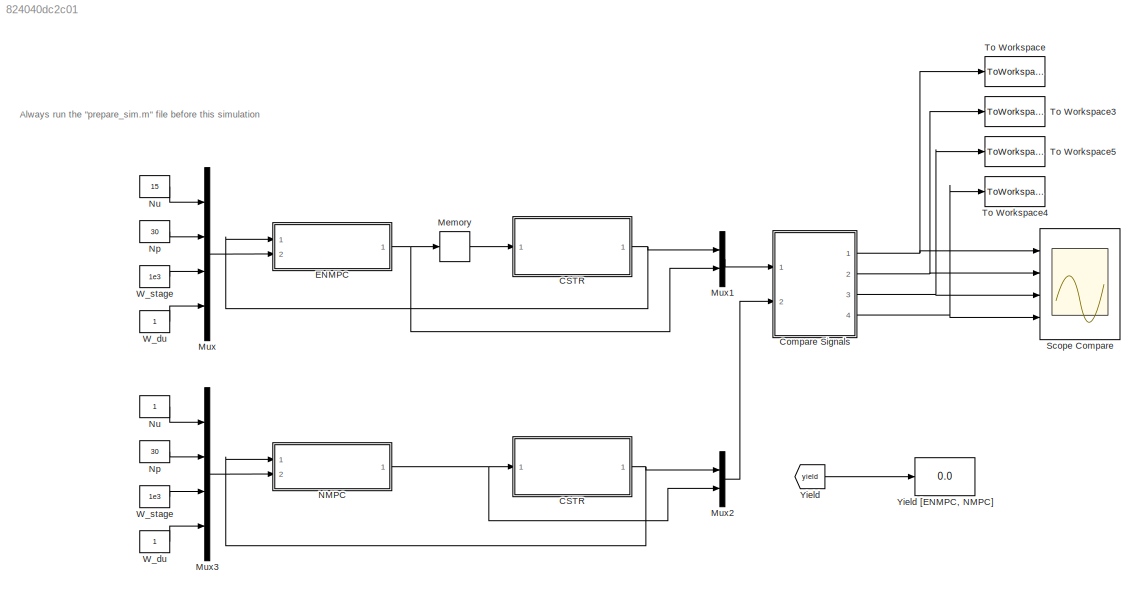
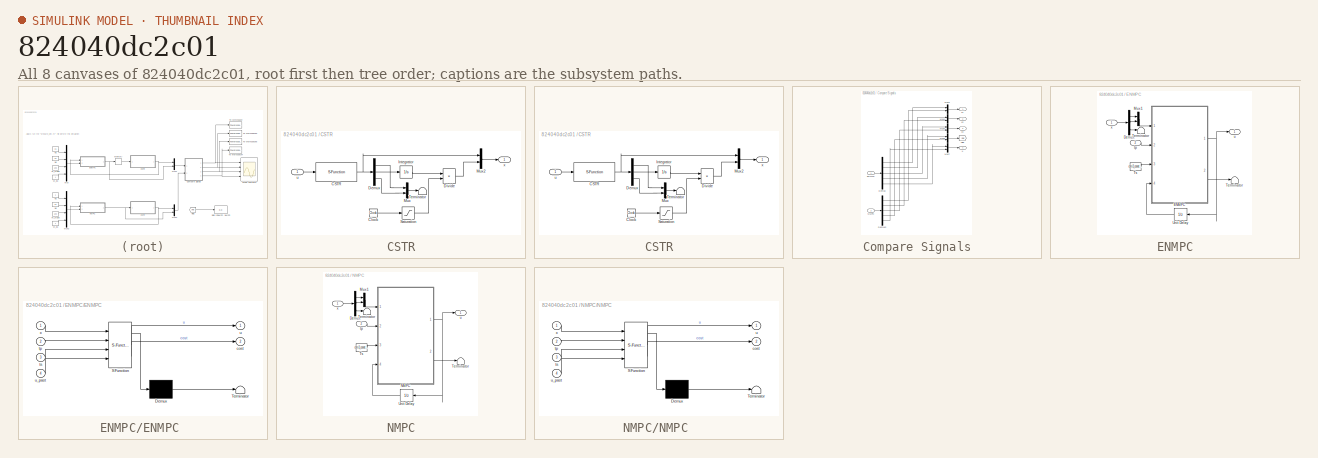
[diagram: thumbnail index - all 8 canvases of the model, root first then tree order]
MODEL slx_824040dc2c01
KIND model
CONFIG AbsTol = auto
CONFIG EnableMultiTasking = off
CONFIG FixedStep = auto
CONFIG MaxStep = auto
CONFIG MinStep = auto
CONFIG RelTol = 1e-3
CONFIG SampleTimeConstraint = Unconstrained
CONFIG Solver = ode15s
CONFIG SolverName = ode15s
CONFIG StartTime = 0.0
CONFIG StopTime = 10
BLOCK [SubSystem]  CSTR 
  Ports = [1, 1]
  RequestExecContextInheritance = off
BLOCK [S-Function]  CSTR /CSTR
  EnableBusSupport = off
  FunctionName = cstr2_sfun
  Ports = [1, 1]
  SFcnIsStateOwnerBlock = off
  SFunctionDeploymentMode = off
BLOCK [Clock]  CSTR /Clock
BLOCK [Demux]  CSTR /Demux
  DisplayOption = bar
  Outputs = 3
  Ports = [1, 3]
BLOCK [Product]  CSTR /Divide
  InputSameDT = off
  Inputs = */
  OutDataTypeStr = Inherit: Inherit via internal rule
  Ports = [2, 1]
  RndMeth = Floor
  SaturateOnIntegerOverflow = off
BLOCK [Integrator]  CSTR /Integrator
  Ports = [1, 1]
BLOCK [Mux]  CSTR /Mux
  DisplayOption = bar
  Inputs = 2
  Ports = [2, 1]
BLOCK [Mux]  CSTR /Mux2
  DisplayOption = bar
  Inputs = 2
  Ports = [2, 1]
BLOCK [Saturate]  CSTR /Saturation
  InputPortMap = u0
  LowerLimit = cstr2_const.ts
  Ports = [1, 1]
  UpperLimit = inf
BLOCK [Terminator]  CSTR /Terminator
BLOCK [Inport]  CSTR /u
  IconDisplay = Port number
BLOCK [Outport]  CSTR /x
  IconDisplay = Port number
BLOCK [Constant]  Np 
  Value = 30
BLOCK [Constant]  Nu 
BLOCK [Constant]  W_du 
BLOCK [Constant]  W_stage 
  Value = 1e3
BLOCK [Display]  Yield [ENMPC, NMPC]
  Decimation = 1
  Ports = [1]
BLOCK [SubSystem] CSTR
  Ports = [1, 1]
  RequestExecContextInheritance = off
BLOCK [S-Function] CSTR/CSTR
  EnableBusSupport = off
  FunctionName = cstr2_sfun
  Ports = [1, 1]
  SFcnIsStateOwnerBlock = off
  SFunctionDeploymentMode = off
BLOCK [Clock] CSTR/Clock
BLOCK [Demux] CSTR/Demux
  DisplayOption = bar
  Outputs = 3
  Ports = [1, 3]
BLOCK [Product] CSTR/Divide
  InputSameDT = off
  Inputs = */
  OutDataTypeStr = Inherit: Inherit via internal rule
  Ports = [2, 1]
  RndMeth = Floor
  SaturateOnIntegerOverflow = off
BLOCK [Integrator] CSTR/Integrator
  Ports = [1, 1]
BLOCK [Mux] CSTR/Mux
  DisplayOption = bar
  Inputs = 2
  Ports = [2, 1]
BLOCK [Mux] CSTR/Mux2
  DisplayOption = bar
  Inputs = 2
  Ports = [2, 1]
BLOCK [Saturate] CSTR/Saturation
  InputPortMap = u0
  LowerLimit = cstr2_const.ts
  Ports = [1, 1]
  UpperLimit = inf
BLOCK [Terminator] CSTR/Terminator
BLOCK [Inport] CSTR/u
  IconDisplay = Port number
BLOCK [Outport] CSTR/x
  IconDisplay = Port number
BLOCK [SubSystem] Compare Signals
  Ports = [2, 4]
  RequestExecContextInheritance = off
BLOCK [Demux] Compare Signals/Demux
  DisplayOption = bar
  Outputs = 5
  Ports = [1, 5]
BLOCK [Demux] Compare Signals/Demux2
  DisplayOption = bar
  Outputs = 5
  Ports = [1, 5]
BLOCK [Inport] Compare Signals/ENMPC
  IconDisplay = Port number
BLOCK [Mux] Compare Signals/Mux2
  DisplayOption = bar
  Inputs = 2
  Ports = [2, 1]
BLOCK [Mux] Compare Signals/Mux4
  DisplayOption = bar
  Inputs = 2
  Ports = [2, 1]
BLOCK [Mux] Compare Signals/Mux5
  DisplayOption = bar
  Inputs = 2
  Ports = [2, 1]
BLOCK [Mux] Compare Signals/Mux6
  DisplayOption = bar
  Inputs = 2
  Ports = [2, 1]
BLOCK [Mux] Compare Signals/Mux7
  DisplayOption = bar
  Inputs = 2
  Ports = [2, 1]
BLOCK [Inport] Compare Signals/NMPC
  IconDisplay = Port number
  Port = 2
BLOCK [Outport] Compare Signals/u
  IconDisplay = Port number
  Port = 4
BLOCK [Outport] Compare Signals/x1
  IconDisplay = Port number
BLOCK [Outport] Compare Signals/x2
  IconDisplay = Port number
  Port = 2
BLOCK [Outport] Compare Signals/x3
  IconDisplay = Port number
  Port = 3
BLOCK [Goto] Compare Signals/yield
  GotoTag = yield
  TagVisibility = global
BLOCK [SubSystem] ENMPC
  Ports = [2, 1]
  RequestExecContextInheritance = off
BLOCK [Demux] ENMPC/Demux
  DisplayOption = bar
  Outputs = 3
  Ports = [1, 3]
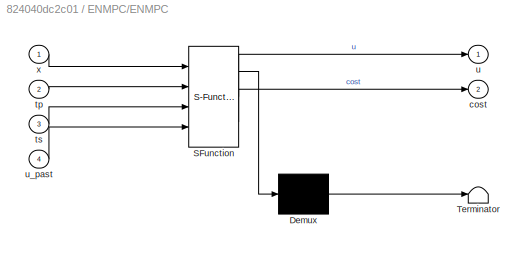
BLOCK [SubSystem] ENMPC/ENMPC 
  ErrorFcn = Stateflow.Translate.translate
  PermitHierarchicalResolution = ExplicitOnly
  Ports = [4, 2]
  RequestExecContextInheritance = off
  SFBlockType = MATLAB Function
  SystemSampleTime = cstr2_const.ts
  TreatAsAtomicUnit = on
BLOCK [Demux] ENMPC/ENMPC / Demux 
  Outputs = 1
  Ports = [1, 1]
BLOCK [S-Function] ENMPC/ENMPC / SFunction 
  EnableBusSupport = off
  FunctionName = sf_sfun
  PortCounts = [4 3]
  Ports = [4, 3]
  SFcnIsStateOwnerBlock = off
  SFunctionDeploymentMode = off
  Tag = Stateflow S-Function cstr2_control_loops1 2
BLOCK [Terminator] ENMPC/ENMPC / Terminator 
BLOCK [Outport] ENMPC/ENMPC /cost
  IconDisplay = Port number
  Port = 2
BLOCK [Inport] ENMPC/ENMPC /tp
  IconDisplay = Port number
  Port = 2
BLOCK [Inport] ENMPC/ENMPC /ts
  IconDisplay = Port number
  Port = 3
BLOCK [Outport] ENMPC/ENMPC /u
  IconDisplay = Port number
BLOCK [Inport] ENMPC/ENMPC /u_past
  IconDisplay = Port number
  Port = 4
BLOCK [Inport] ENMPC/ENMPC /x
  IconDisplay = Port number
BLOCK [Mux] ENMPC/Mux1
  DisplayOption = bar
  Inputs = 2
  Ports = [2, 1]
BLOCK [Terminator] ENMPC/Terminator
BLOCK [Terminator] ENMPC/Terminator 
BLOCK [Constant] ENMPC/Ts
  Value = cstr2_const.ts
BLOCK [UnitDelay] ENMPC/Unit Delay
  HasFrameUpgradeWarning = on
  InitialCondition = cstr2_const.u_0
  SampleTime = cstr2_const.ts
BLOCK [Inport] ENMPC/tp
  IconDisplay = Port number
  Port = 2
BLOCK [Outport] ENMPC/u
  IconDisplay = Port number
BLOCK [Inport] ENMPC/x
  IconDisplay = Port number
BLOCK [Memory] Memory
  InitialCondition = cstr2_const.u_0
BLOCK [Mux] Mux
  DisplayOption = bar
  Ports = [4, 1]
BLOCK [Mux] Mux1
  DisplayOption = bar
  Inputs = 2
  Ports = [2, 1]
BLOCK [Mux] Mux2
  DisplayOption = bar
  Inputs = 2
  Ports = [2, 1]
BLOCK [Mux] Mux3
  DisplayOption = bar
  Ports = [4, 1]
BLOCK [SubSystem] NMPC
  Ports = [2, 1]
  RequestExecContextInheritance = off
BLOCK [Demux] NMPC/Demux
  DisplayOption = bar
  Outputs = 3
  Ports = [1, 3]
BLOCK [Mux] NMPC/Mux1
  DisplayOption = bar
  Inputs = 2
  Ports = [2, 1]
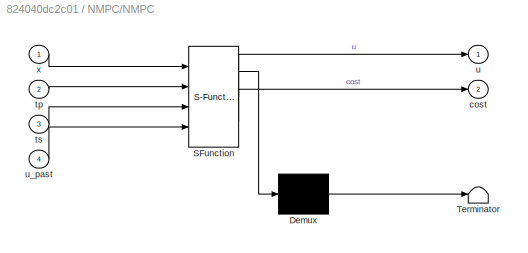
BLOCK [SubSystem] NMPC/NMPC 
  ErrorFcn = Stateflow.Translate.translate
  PermitHierarchicalResolution = ExplicitOnly
  Ports = [4, 2]
  RequestExecContextInheritance = off
  SFBlockType = MATLAB Function
  SystemSampleTime = cstr2_const.ts
  TreatAsAtomicUnit = on
BLOCK [Demux] NMPC/NMPC / Demux 
  Outputs = 1
  Ports = [1, 1]
BLOCK [S-Function] NMPC/NMPC / SFunction 
  EnableBusSupport = off
  FunctionName = sf_sfun
  PortCounts = [4 3]
  Ports = [4, 3]
  SFcnIsStateOwnerBlock = off
  SFunctionDeploymentMode = off
  Tag = Stateflow S-Function cstr2_control_loops1 1
BLOCK [Terminator] NMPC/NMPC / Terminator 
BLOCK [Outport] NMPC/NMPC /cost
  IconDisplay = Port number
  Port = 2
BLOCK [Inport] NMPC/NMPC /tp
  IconDisplay = Port number
  Port = 2
BLOCK [Inport] NMPC/NMPC /ts
  IconDisplay = Port number
  Port = 3
BLOCK [Outport] NMPC/NMPC /u
  IconDisplay = Port number
BLOCK [Inport] NMPC/NMPC /u_past
  IconDisplay = Port number
  Port = 4
BLOCK [Inport] NMPC/NMPC /x
  IconDisplay = Port number
BLOCK [Terminator] NMPC/Terminator
BLOCK [Terminator] NMPC/Terminator 
BLOCK [Constant] NMPC/Ts
  Value = cstr2_const.ts
BLOCK [UnitDelay] NMPC/Unit Delay
  HasFrameUpgradeWarning = on
  InitialCondition = cstr2_const.u_0
  SampleTime = cstr2_const.ts
BLOCK [Inport] NMPC/tp
  IconDisplay = Port number
  Port = 2
BLOCK [Outport] NMPC/u
  IconDisplay = Port number
BLOCK [Inport] NMPC/x
  IconDisplay = Port number
BLOCK [Constant] Np
  Value = 30
BLOCK [Constant] Nu
  Value = 15
BLOCK [Scope] Scope Compare
  Floating = off
  NumInputPorts = 4
  Ports = [4]
  ScopeSpecificationString = Simulink.scopes.TimeScopeBlockCfg('CurrentConfiguration', extmgr.ConfigurationSet(extmgr.Configuration('Core','General UI',true),extmgr.Configuration('Core','Source UI',true),extmgr.Configuration('Sources','WiredSimulink',true,'DataLogging',true,'DataLoggingSaveFormat','StructureWithTime','DataLoggingVariableName','cstr2_data'),extmgr.Configuration('Visuals','Time Domain',true,'TimeAxisLabels','Al...<+4963ch>
BLOCK [ToWorkspace] To Workspace
  FixptAsFi = on
  MaxDataPoints = inf
  Ports = [1]
  SampleTime = -1
  SaveFormat = Structure With Time
  VariableName = x1
BLOCK [ToWorkspace] To Workspace3
  FixptAsFi = on
  MaxDataPoints = inf
  Ports = [1]
  SampleTime = -1
  SaveFormat = Structure With Time
  VariableName = x2
BLOCK [ToWorkspace] To Workspace4
  FixptAsFi = on
  MaxDataPoints = inf
  Ports = [1]
  SampleTime = -1
  SaveFormat = Structure With Time
  VariableName = u
BLOCK [ToWorkspace] To Workspace5
  FixptAsFi = on
  MaxDataPoints = inf
  Ports = [1]
  SampleTime = -1
  SaveFormat = Structure With Time
  VariableName = x3
BLOCK [Constant] W_du
BLOCK [Constant] W_stage
  Value = 1e3
BLOCK [From] Yield
  GotoTag = yield
  TagVisibility = global
ANNOTATION (root): Always run the "prepare_sim.m" file before this simulation
NET  CSTR /CSTR:1 ->  CSTR /Demux:1,  CSTR /Mux2:1
LINE  CSTR /Clock:1 ->  CSTR /Saturation:1
LINE  CSTR /Demux:1 ->  CSTR /Mux:1
LINE  CSTR /Demux:2 ->  CSTR /Integrator:1
LINE  CSTR /Demux:3 ->  CSTR /Mux:2
LINE  CSTR /Divide:1 ->  CSTR /Mux2:2
LINE  CSTR /Integrator:1 ->  CSTR /Divide:1
LINE  CSTR /Mux2:1 ->  CSTR /x:1
LINE  CSTR /Mux:1 ->  CSTR /Terminator:1
LINE  CSTR /Saturation:1 ->  CSTR /Divide:2
LINE  CSTR /u:1 ->  CSTR /CSTR:1
NET  CSTR :1 -> Mux2:1, NMPC:1
LINE  Np :1 -> Mux3:2
LINE  Nu :1 -> Mux3:1
LINE  W_du :1 -> Mux3:4
LINE  W_stage :1 -> Mux3:3
NET CSTR/CSTR:1 -> CSTR/Demux:1, CSTR/Mux2:1
LINE CSTR/Clock:1 -> CSTR/Saturation:1
LINE CSTR/Demux:1 -> CSTR/Mux:1
LINE CSTR/Demux:2 -> CSTR/Integrator:1
LINE CSTR/Demux:3 -> CSTR/Mux:2
LINE CSTR/Divide:1 -> CSTR/Mux2:2
LINE CSTR/Integrator:1 -> CSTR/Divide:1
LINE CSTR/Mux2:1 -> CSTR/x:1
LINE CSTR/Mux:1 -> CSTR/Terminator:1
LINE CSTR/Saturation:1 -> CSTR/Divide:2
LINE CSTR/u:1 -> CSTR/CSTR:1
NET CSTR:1 -> ENMPC:1, Mux1:1
LINE Compare Signals/Demux2:1 -> Compare Signals/Mux2:2
LINE Compare Signals/Demux2:2 -> Compare Signals/Mux4:2
LINE Compare Signals/Demux2:3 -> Compare Signals/Mux5:2
LINE Compare Signals/Demux2:4 -> Compare Signals/Mux6:2
LINE Compare Signals/Demux2:5 -> Compare Signals/Mux7:2
LINE Compare Signals/Demux:1 -> Compare Signals/Mux2:1
LINE Compare Signals/Demux:2 -> Compare Signals/Mux4:1
LINE Compare Signals/Demux:3 -> Compare Signals/Mux5:1
LINE Compare Signals/Demux:4 -> Compare Signals/Mux6:1
LINE Compare Signals/Demux:5 -> Compare Signals/Mux7:1
LINE Compare Signals/ENMPC:1 -> Compare Signals/Demux:1
LINE Compare Signals/Mux2:1 -> Compare Signals/x1:1
LINE Compare Signals/Mux4:1 -> Compare Signals/x2:1
LINE Compare Signals/Mux5:1 -> Compare Signals/x3:1
LINE Compare Signals/Mux6:1 -> Compare Signals/yield:1
LINE Compare Signals/Mux7:1 -> Compare Signals/u:1
LINE Compare Signals/NMPC:1 -> Compare Signals/Demux2:1
NET Compare Signals:1 -> Scope Compare:1, To Workspace:1
NET Compare Signals:2 -> Scope Compare:2, To Workspace3:1
NET Compare Signals:3 -> Scope Compare:3, To Workspace5:1
NET Compare Signals:4 -> Scope Compare:4, To Workspace4:1
LINE ENMPC/Demux:1 -> ENMPC/Mux1:1
LINE ENMPC/Demux:2 -> ENMPC/Mux1:2
LINE ENMPC/Demux:3 -> ENMPC/Terminator:1
NET ENMPC/ENMPC :1 -> ENMPC/Unit Delay:1, ENMPC/u:1
LINE ENMPC/ENMPC :2 -> ENMPC/Terminator :1
LINE ENMPC/Mux1:1 -> ENMPC/ENMPC :1
LINE ENMPC/Ts:1 -> ENMPC/ENMPC :3
LINE ENMPC/Unit Delay:1 -> ENMPC/ENMPC :4
LINE ENMPC/tp:1 -> ENMPC/ENMPC :2
LINE ENMPC/x:1 -> ENMPC/Demux:1
NET ENMPC:1 -> Memory:1, Mux1:2
LINE Memory:1 -> CSTR:1
LINE Mux1:1 -> Compare Signals:1
LINE Mux2:1 -> Compare Signals:2
LINE Mux3:1 -> NMPC:2
LINE Mux:1 -> ENMPC:2
LINE NMPC/Demux:1 -> NMPC/Mux1:1
LINE NMPC/Demux:2 -> NMPC/Mux1:2
LINE NMPC/Demux:3 -> NMPC/Terminator:1
LINE NMPC/Mux1:1 -> NMPC/NMPC :1
NET NMPC/NMPC :1 -> NMPC/Unit Delay:1, NMPC/u:1
LINE NMPC/NMPC :2 -> NMPC/Terminator :1
LINE NMPC/Ts:1 -> NMPC/NMPC :3
LINE NMPC/Unit Delay:1 -> NMPC/NMPC :4
LINE NMPC/tp:1 -> NMPC/NMPC :2
LINE NMPC/x:1 -> NMPC/Demux:1
NET NMPC:1 ->  CSTR :1, Mux2:2
LINE Np:1 -> Mux:2
LINE Nu:1 -> Mux:1
LINE W_du:1 -> Mux:4
LINE W_stage:1 -> Mux:3
LINE Yield:1 ->  Yield [ENMPC, NMPC]:1
note: NET lines group one-source signal fan-out (src -> all destinations, sorted); 1:1 wires keep LINE
CHART NMPC/NMPC
 states=1 transitions=1
  STATE_LABEL 'eML_blk_kernel()'
  STATE_LABEL "SCRIPT:\nfunction [u, cost] = nmpc(x,tp,ts,u_past)\n    u = u_past; cost = 0;\n    coder.extrinsic('get_control_input');\n    [u,cost] = get_control_input(x,u_past,tp,2,ts);\nend"
CHART ENMPC/ENMPC
 states=1 transitions=1
  STATE_LABEL 'eML_blk_kernel()'
  STATE_LABEL "SCRIPT:\nfunction [u, cost] = enmpc(x,tp,ts,u_past)\n    u = u_past; cost = 0;\n    coder.extrinsic('get_control_input');\n    [u,cost] = get_control_input(x,u_past,tp,1,ts);\nend"
